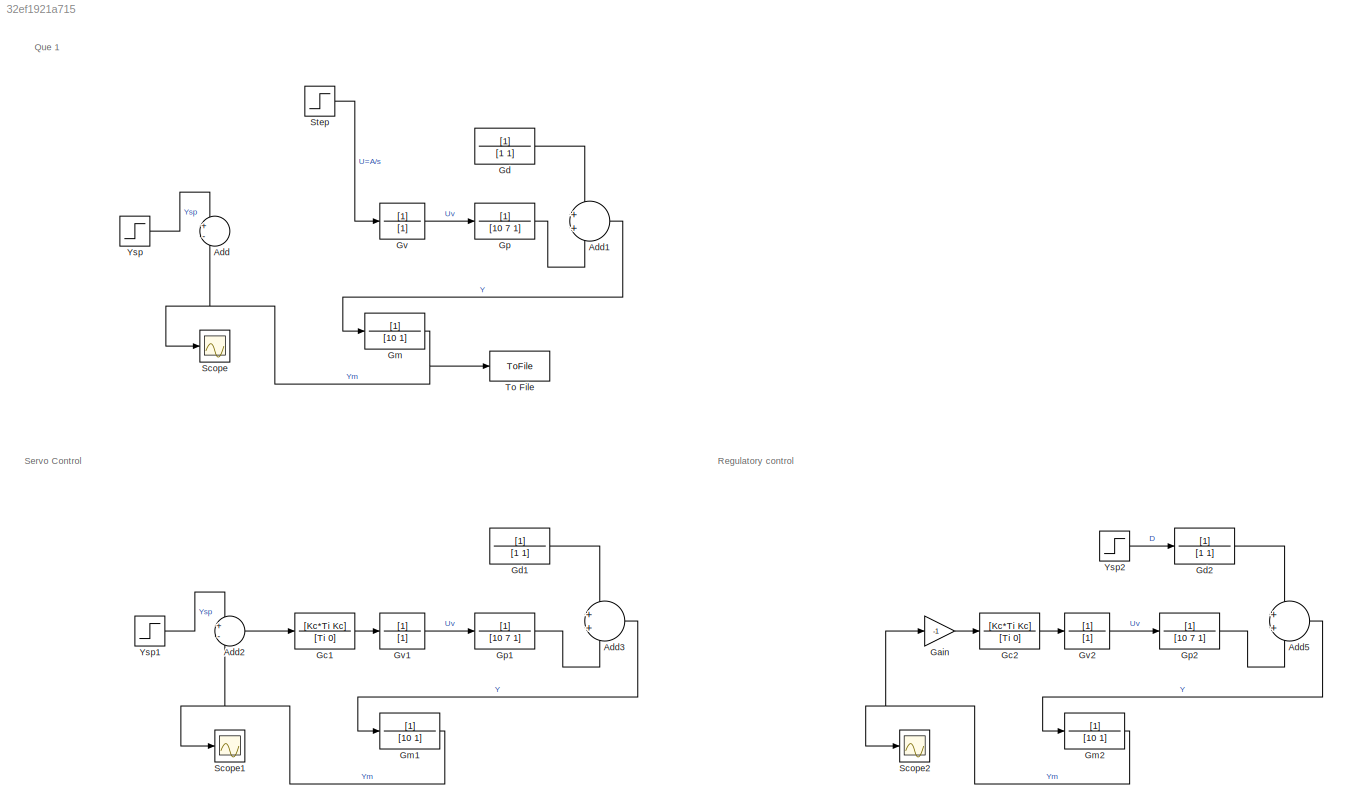
MODEL slx_32ef1921a715
KIND model
CONFIG AbsTol = auto
CONFIG EnableMultiTasking = off
CONFIG FixedStep = auto
CONFIG MaxStep = auto
CONFIG MinStep = auto
CONFIG RelTol = 1e-10
CONFIG SampleTimeConstraint = Unconstrained
CONFIG SolverName = VariableStepAuto
CONFIG StartTime = 0.0
CONFIG StopTime = 800
BLOCK [Sum] Add
  Inputs = +-
BLOCK [Sum] Add1
BLOCK [Sum] Add2
  Inputs = +-
BLOCK [Sum] Add3
BLOCK [Sum] Add5
BLOCK [Gain] Gain
  Gain = -1
BLOCK [TransferFcn] Gc1
  Denominator = [Ti 0]
  Numerator = [Kc*Ti Kc]
BLOCK [TransferFcn] Gc2
  Denominator = [Ti 0]
  Numerator = [Kc*Ti Kc]
BLOCK [TransferFcn] Gd
  Denominator = [1 1]
BLOCK [TransferFcn] Gd1
  Denominator = [1 1]
BLOCK [TransferFcn] Gd2
  Denominator = [1 1]
BLOCK [TransferFcn] Gm
  Denominator = [10 1]
BLOCK [TransferFcn] Gm1
  Denominator = [10 1]
BLOCK [TransferFcn] Gm2
  Denominator = [10 1]
BLOCK [TransferFcn] Gp
  Denominator = [10 7 1]
BLOCK [TransferFcn] Gp1
  Denominator = [10 7 1]
BLOCK [TransferFcn] Gp2
  Denominator = [10 7 1]
BLOCK [TransferFcn] Gv
  Denominator = [1]
BLOCK [TransferFcn] Gv1
  Denominator = [1]
BLOCK [TransferFcn] Gv2
  Denominator = [1]
BLOCK [Scope] Scope
  Floating = off
  NumInputPorts = 1
  ScopeSpecificationString = Simulink.scopes.TimeScopeBlockCfg('CurrentConfiguration', extmgr.ConfigurationSet(extmgr.Configuration('Core','General UI',true),extmgr.Configuration('Core','Source UI',true),extmgr.Configuration('Sources','WiredSimulink',true),extmgr.Configuration('Visuals','Time Domain',true,'SerializedDisplays',{struct('MinYLimReal','-0.125','MaxYLimReal','1.125','YLabelReal','','MinYLimMag','0.00000','MaxYLimM...<+1310ch>
BLOCK [Scope] Scope1
  Floating = off
  NumInputPorts = 1
  ScopeSpecificationString = Simulink.scopes.TimeScopeBlockCfg('CurrentConfiguration', extmgr.ConfigurationSet(extmgr.Configuration('Core','General UI',true),extmgr.Configuration('Core','Source UI',true),extmgr.Configuration('Sources','WiredSimulink',true,'DataLoggingVariableName','ScopeData1'),extmgr.Configuration('Visuals','Time Domain',true,'SerializedDisplays',{struct('MinYLimReal','-0.23156','MaxYLimReal','2.08405','YLab...<+1361ch>
BLOCK [Scope] Scope2
  Floating = off
  NumInputPorts = 1
  ScopeSpecificationString = Simulink.scopes.TimeScopeBlockCfg('CurrentConfiguration', extmgr.ConfigurationSet(extmgr.Configuration('Core','General UI',true),extmgr.Configuration('Core','Source UI',true),extmgr.Configuration('Sources','WiredSimulink',true,'DataLoggingVariableName','ScopeData2'),extmgr.Configuration('Visuals','Time Domain',true,'SerializedDisplays',{struct('MinYLimReal','-0.328','MaxYLimReal','0.39325','YLabel...<+1357ch>
BLOCK [Step] Step
  SampleTime = 0
BLOCK [ToFile] To File
  Filename = ymdata.mat
BLOCK [Step] Ysp
  SampleTime = 0
BLOCK [Step] Ysp1
  SampleTime = 0
BLOCK [Step] Ysp2
  SampleTime = 0
ANNOTATION (root): Que 1
ANNOTATION (root): Regulatory control
ANNOTATION (root): Servo Control
LINE Add1:1 -> Gm:1
LINE Add2:1 -> Gc1:1
LINE Add3:1 -> Gm1:1
LINE Add5:1 -> Gm2:1
LINE Gain:1 -> Gc2:1
LINE Gc1:1 -> Gv1:1
LINE Gc2:1 -> Gv2:1
LINE Gd1:1 -> Add3:1
LINE Gd2:1 -> Add5:1
LINE Gd:1 -> Add1:1
NET Gm1:1 -> Add2:2, Scope1:1
NET Gm2:1 -> Gain:1, Scope2:1
NET Gm:1 -> Add:2, Scope:1, To File:1
LINE Gp1:1 -> Add3:2
LINE Gp2:1 -> Add5:2
LINE Gp:1 -> Add1:2
LINE Gv1:1 -> Gp1:1
LINE Gv2:1 -> Gp2:1
LINE Gv:1 -> Gp:1
LINE Step:1 -> Gv:1
LINE Ysp1:1 -> Add2:1
LINE Ysp2:1 -> Gd2:1
LINE Ysp:1 -> Add:1
note: NET lines group one-source signal fan-out (src -> all destinations, sorted); 1:1 wires keep LINE
